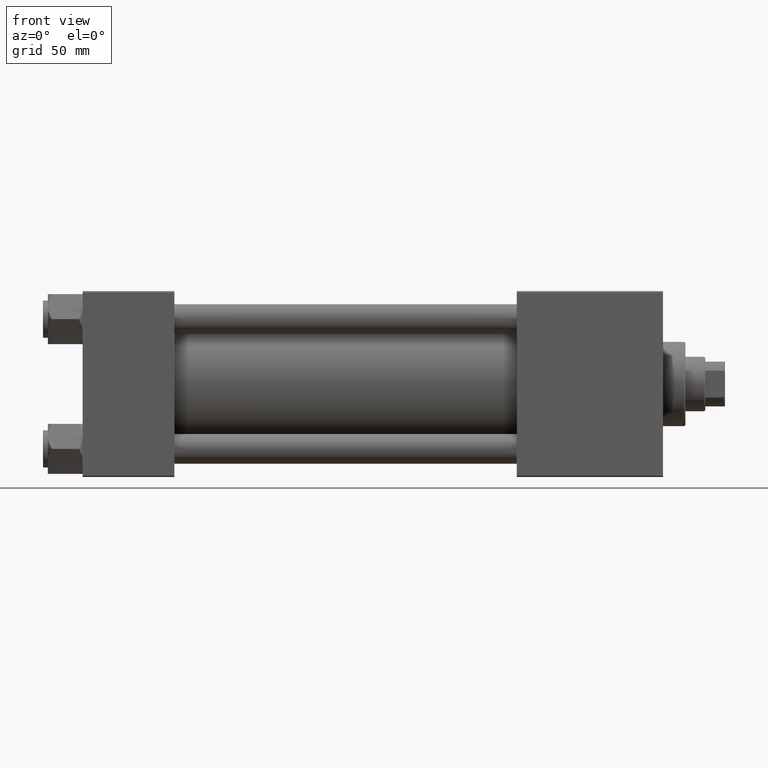
[diagram: clean part render]
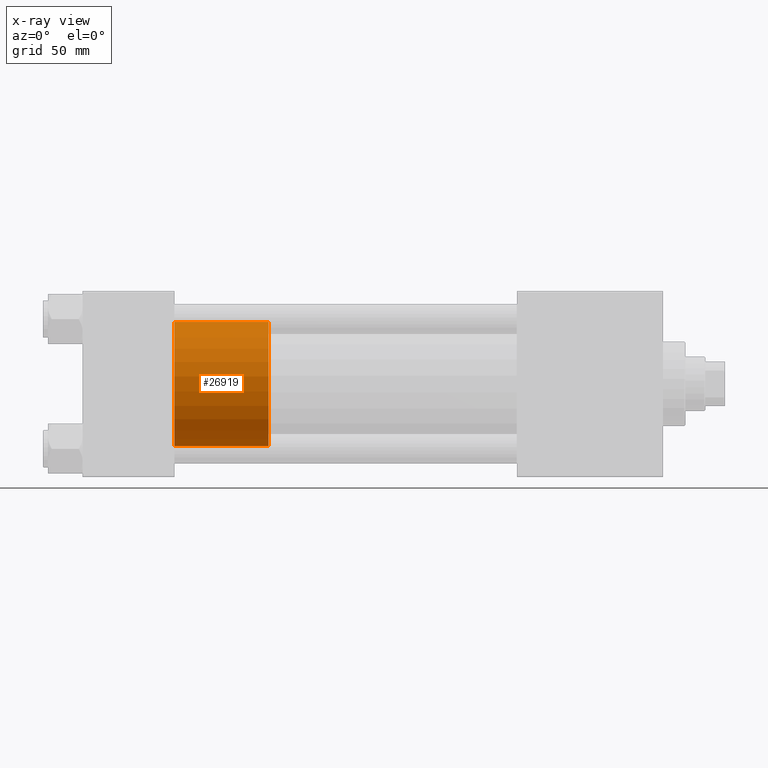
[diagram: x-ray — body ghosted, one internal face saturated and labeled with its STEP entity id]
A machine part, front view, then the same camera in x-ray: the body is ghosted and one INTERNAL B-rep face — a face not visible from any outside direction — is saturated and labeled: STEP entity #26919.
In plain terms, the highlighted cylindrical surface (partial cylindrical patch) has radius 25 mm, axis along (-1, 0, 0).
Its self-contained STEP definition (entity closure, byte-faithful):
#35 = EDGE_LOOP ( 'NONE', ( #18425, #43928, #33603, #42216 ) ) ;
#1693 = CYLINDRICAL_SURFACE ( 'NONE', #20392, 25.00000000000000000 ) ;
#2189 = DIRECTION ( 'NONE',  ( -0.000000000000000000, -0.000000000000000000, -1.000000000000000000 ) ) ;
#5260 = CARTESIAN_POINT ( 'NONE',  ( -25.00000000000000000, 0.000000000000000000, 38.00000000000000000 ) ) ;
#5759 = FACE_OUTER_BOUND ( 'NONE', #35, .T. ) ;
#6952 = VERTEX_POINT ( 'NONE', #15704 ) ;
#8322 = CARTESIAN_POINT ( 'NONE',  ( 25.00000000000000000, 3.061616997868383043E-15, 38.00000000000000000 ) ) ;
#12121 = LINE ( 'NONE', #8322, #33258 ) ;
#12138 = CIRCLE ( 'NONE', #21897, 25.00000000000000000 ) ;
#12376 = VECTOR ( 'NONE', #24749, 1000.000000000000000 ) ;
#13093 = EDGE_CURVE ( 'NONE', #6952, #41051, #25763, .T. ) ;
#13098 = DIRECTION ( 'NONE',  ( -1.000000000000000000, 0.000000000000000000, 0.000000000000000000 ) ) ;
#13574 = CARTESIAN_POINT ( 'NONE',  ( -25.00000000000000000, 0.000000000000000000, 38.00000000000000000 ) ) ;
#15704 = CARTESIAN_POINT ( 'NONE',  ( 25.00000000000000000, 3.061616997868383043E-15, 38.00000000000000000 ) ) ;
#18425 = ORIENTED_EDGE ( 'NONE', *, *, #13093, .F. ) ;
#19839 = DIRECTION ( 'NONE',  ( 0.000000000000000000, 0.000000000000000000, 1.000000000000000000 ) ) ;
#20392 = AXIS2_PLACEMENT_3D ( 'NONE', #40267, #2189, #13098 ) ;
#21897 = AXIS2_PLACEMENT_3D ( 'NONE', #26511, #19839, #23644 ) ;
#23644 = DIRECTION ( 'NONE',  ( 1.000000000000000000, 0.000000000000000000, 0.000000000000000000 ) ) ;
#24749 = DIRECTION ( 'NONE',  ( -0.000000000000000000, -0.000000000000000000, -1.000000000000000000 ) ) ;
#24928 = AXIS2_PLACEMENT_3D ( 'NONE', #26213, #41217, #37413 ) ;
#25763 = CIRCLE ( 'NONE', #24928, 25.00000000000000000 ) ;
#26213 = CARTESIAN_POINT ( 'NONE',  ( 0.000000000000000000, 0.000000000000000000, 38.00000000000000000 ) ) ;
#26511 = CARTESIAN_POINT ( 'NONE',  ( 0.000000000000000000, 0.000000000000000000, 0.000000000000000000 ) ) ;
#26919 = ADVANCED_FACE ( 'NONE', ( #5759 ), #1693, .T. ) ;
#29311 = LINE ( 'NONE', #13574, #12376 ) ;
#32652 = DIRECTION ( 'NONE',  ( -0.000000000000000000, -0.000000000000000000, -1.000000000000000000 ) ) ;
#33258 = VECTOR ( 'NONE', #32652, 1000.000000000000000 ) ;
#33603 = ORIENTED_EDGE ( 'NONE', *, *, #48346, .T. ) ;
#33741 = CARTESIAN_POINT ( 'NONE',  ( 25.00000000000000000, 3.061616997868383043E-15, 0.000000000000000000 ) ) ;
#33750 = EDGE_CURVE ( 'NONE', #41051, #43839, #29311, .T. ) ;
#37413 = DIRECTION ( 'NONE',  ( 1.000000000000000000, 0.000000000000000000, 0.000000000000000000 ) ) ;
#40267 = CARTESIAN_POINT ( 'NONE',  ( 0.000000000000000000, 0.000000000000000000, 38.00000000000000000 ) ) ;
#41051 = VERTEX_POINT ( 'NONE', #5260 ) ;
#41217 = DIRECTION ( 'NONE',  ( 0.000000000000000000, 0.000000000000000000, 1.000000000000000000 ) ) ;
#42216 = ORIENTED_EDGE ( 'NONE', *, *, #33750, .F. ) ;
#43094 = VERTEX_POINT ( 'NONE', #33741 ) ;
#43839 = VERTEX_POINT ( 'NONE', #46037 ) ;
#43928 = ORIENTED_EDGE ( 'NONE', *, *, #49888, .T. ) ;
#46037 = CARTESIAN_POINT ( 'NONE',  ( -25.00000000000000000, 0.000000000000000000, 0.000000000000000000 ) ) ;
#48346 = EDGE_CURVE ( 'NONE', #43094, #43839, #12138, .T. ) ;
#49888 = EDGE_CURVE ( 'NONE', #6952, #43094, #12121, .T. ) ;